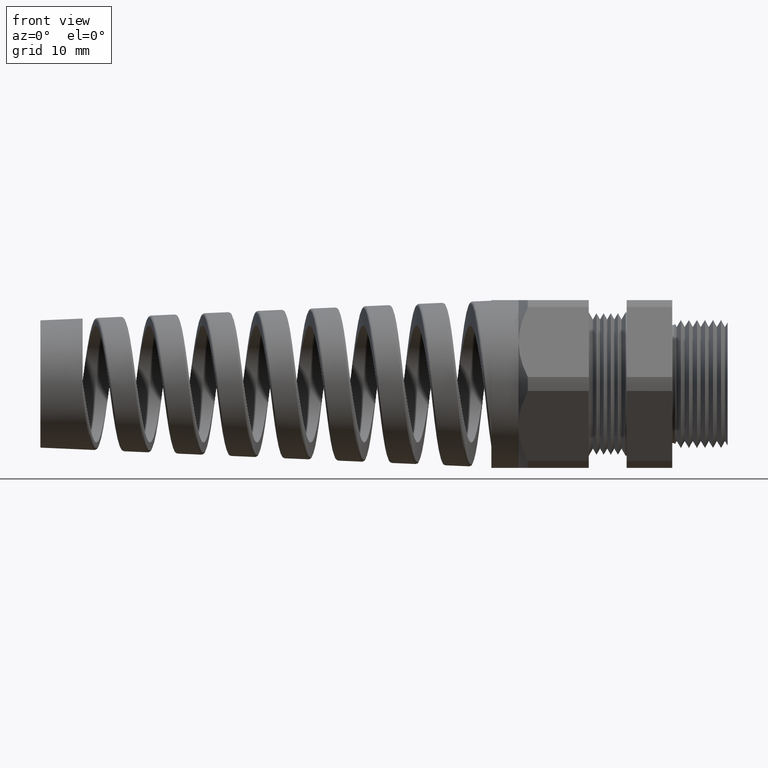
[diagram: clean part render]
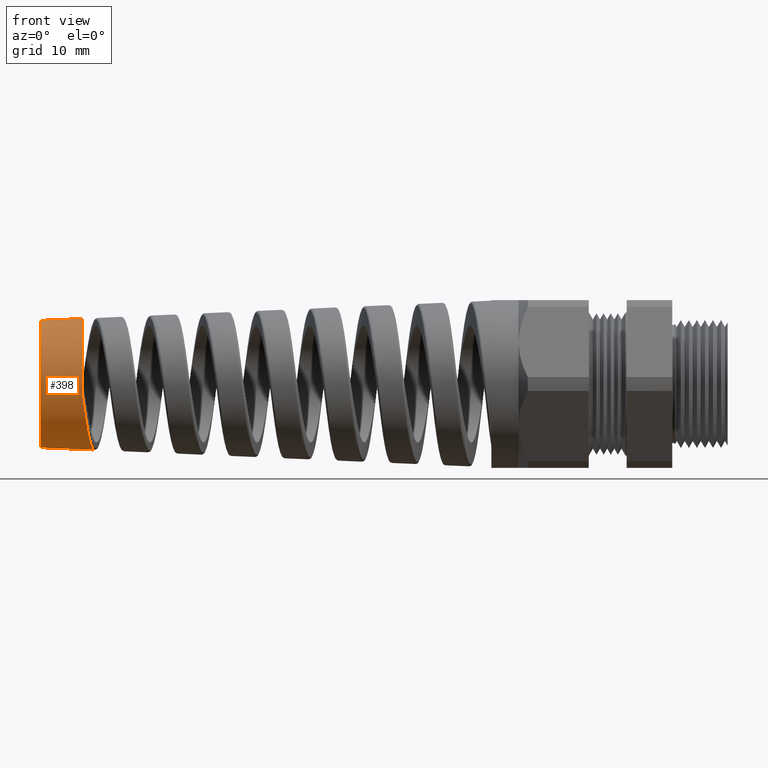
[diagram: same view with one face highlighted and labeled with its STEP entity id]
A machine part, front view. The second image highlights one B-rep face of the part: STEP entity #398.
In plain terms, the highlighted conical surface has half-angle 2.5 deg.
Its self-contained STEP definition (entity closure, byte-faithful):
#395 = VERTEX_POINT ( 'NONE', #1661 ) ;
#397 = EDGE_CURVE ( 'NONE', #473, #395, #1684, .T. ) ;
#398 = ADVANCED_FACE ( 'NONE', ( #1680 ), #1679, .T. ) ;
#399 = EDGE_LOOP ( 'NONE', ( #400, #401, #431, #432, #435 ) ) ;
#400 = ORIENTED_EDGE ( 'NONE', *, *, #475, .F. ) ;
#401 = ORIENTED_EDGE ( 'NONE', *, *, #402, .F. ) ;
#402 = EDGE_CURVE ( 'NONE', #473, #472, #1743, .T. ) ;
#431 = ORIENTED_EDGE ( 'NONE', *, *, #397, .T. ) ;
#432 = ORIENTED_EDGE ( 'NONE', *, *, #433, .T. ) ;
#433 = EDGE_CURVE ( 'NONE', #395, #434, #1813, .T. ) ;
#434 = VERTEX_POINT ( 'NONE', #1815 ) ;
#435 = ORIENTED_EDGE ( 'NONE', *, *, #436, .T. ) ;
#436 = EDGE_CURVE ( 'NONE', #434, #476, #1782, .T. ) ;
#472 = VERTEX_POINT ( 'NONE', #1972 ) ;
#473 = VERTEX_POINT ( 'NONE', #2040 ) ;
#475 = EDGE_CURVE ( 'NONE', #472, #476, #2039, .T. ) ;
#476 = VERTEX_POINT ( 'NONE', #2035 ) ;
#1661 = CARTESIAN_POINT ( 'NONE',  ( -3.547311726726791700, 4.682762619066216700E-013, -0.3696972038563253700 ) ) ;
#1674 = CARTESIAN_POINT ( 'NONE',  ( -3.850000472440945600, 0.0000000000000000000, 0.0000000000000000000 ) ) ;
#1675 = DIRECTION ( 'NONE',  ( 0.0000000000000000000, 0.0000000000000000000, -1.000000000000000000 ) ) ;
#1676 = DIRECTION ( 'NONE',  ( 1.000000000000000000, 0.0000000000000000000, 0.0000000000000000000 ) ) ;
#1677 = CARTESIAN_POINT ( 'NONE',  ( -1.250000000000000000, 0.0000000000000000000, 0.0000000000000000000 ) ) ;
#1678 = AXIS2_PLACEMENT_3D ( 'NONE', #1677, #1676, #1675 ) ;
#1679 = CONICAL_SURFACE ( 'NONE', #1678, 0.4699999999999998600, 0.04363323129985855600 ) ;
#1680 = FACE_OUTER_BOUND ( 'NONE', #399, .T. ) ;
#1681 = DIRECTION ( 'NONE',  ( 0.9990482215818576900, 0.0000000000000000000, -0.04361938736533631900 ) ) ;
#1682 = VECTOR ( 'NONE', #1681, 39.37007874015748100 ) ;
#1683 = CARTESIAN_POINT ( 'NONE',  ( -1.250000000000000000, 0.0000000000000000000, -0.4699999999999998600 ) ) ;
#1684 = LINE ( 'NONE', #1683, #1682 ) ;
#1740 = DIRECTION ( 'NONE',  ( 0.0000000000000000000, 0.0000000000000000000, 1.000000000000000000 ) ) ;
#1741 = DIRECTION ( 'NONE',  ( -1.000000000000000000, 0.0000000000000000000, 0.0000000000000000000 ) ) ;
#1742 = AXIS2_PLACEMENT_3D ( 'NONE', #1674, #1741, #1740 ) ;
#1743 = CIRCLE ( 'NONE', #1742, 0.3564815278106572800 ) ;
#1780 = DIRECTION ( 'NONE',  ( -1.000000000000000000, 0.0000000000000000000, 0.0000000000000000000 ) ) ;
#1781 = AXIS2_PLACEMENT_3D ( 'NONE', #1814, #1780, #1809 ) ;
#1782 = CIRCLE ( 'NONE', #1781, 0.3667951363717231700 ) ;
#1783 = CARTESIAN_POINT ( 'NONE',  ( -3.613780000000000200, -0.3609800727387581500, -0.06505427850239330100 ) ) ;
#1784 = CARTESIAN_POINT ( 'NONE',  ( -3.612377216964120800, -0.3591284444417066600, -0.07567411739134673200 ) ) ;
#1785 = CARTESIAN_POINT ( 'NONE',  ( -3.610978473443785300, -0.3568144953217378100, -0.08618398395442983300 ) ) ;
#1786 = CARTESIAN_POINT ( 'NONE',  ( -3.608178348853377400, -0.3512670131667060500, -0.1069835470925400200 ) ) ;
#1787 = CARTESIAN_POINT ( 'NONE',  ( -3.606775100498849100, -0.3480254015438168900, -0.1172857280111182400 ) ) ;
#1788 = CARTESIAN_POINT ( 'NONE',  ( -3.602601675547284700, -0.3370628142304207800, -0.1474570524811002500 ) ) ;
#1789 = CARTESIAN_POINT ( 'NONE',  ( -3.599849319971850600, -0.3280831225088548000, -0.1667325073307411600 ) ) ;
#1790 = CARTESIAN_POINT ( 'NONE',  ( -3.595703030018903200, -0.3121529980773223300, -0.1944017765682521100 ) ) ;
#1791 = CARTESIAN_POINT ( 'NONE',  ( -3.594318009923533000, -0.3064305973954998300, -0.2034164119074073100 ) ) ;
#1792 = CARTESIAN_POINT ( 'NONE',  ( -3.591531346717174800, -0.2941409397394300100, -0.2210170389564540500 ) ) ;
#1793 = CARTESIAN_POINT ( 'NONE',  ( -3.590130182305023800, -0.2875710544330656300, -0.2295961973772053500 ) ) ;
#1794 = CARTESIAN_POINT ( 'NONE',  ( -3.585968297373755200, -0.2669782582606783400, -0.2541864445958778600 ) ) ;
#1795 = CARTESIAN_POINT ( 'NONE',  ( -3.583221715274647500, -0.2519611843617772200, -0.2692363223295592400 ) ) ;
#1796 = CARTESIAN_POINT ( 'NONE',  ( -3.579081816020239800, -0.2275342193812148700, -0.2898169403811261500 ) ) ;
#1797 = CARTESIAN_POINT ( 'NONE',  ( -3.577698555081448200, -0.2190732718422288800, -0.2963429733869709100 ) ) ;
#1798 = CARTESIAN_POINT ( 'NONE',  ( -3.574914618853894500, -0.2014978947153698300, -0.3087076608156366600 ) ) ;
#1799 = CARTESIAN_POINT ( 'NONE',  ( -3.573518282957256700, -0.1924083085025249900, -0.3145226449081263700 ) ) ;
#1800 = CARTESIAN_POINT ( 'NONE',  ( -3.569367627383842800, -0.1646848794985025800, -0.3306060567074884900 ) ) ;
#1801 = CARTESIAN_POINT ( 'NONE',  ( -3.566626469986264400, -0.1454410237745028800, -0.3396379440789657500 ) ) ;
#1802 = CARTESIAN_POINT ( 'NONE',  ( -3.561114914651062800, -0.1054547484241203200, -0.3543499685123486800 ) ) ;
#1803 = CARTESIAN_POINT ( 'NONE',  ( -3.558318993760722900, -0.08450993154052381700, -0.3600485728898277200 ) ) ;
#1809 = DIRECTION ( 'NONE',  ( 0.0000000000000000000, 0.0000000000000000000, 1.000000000000000000 ) ) ;
#1810 = CARTESIAN_POINT ( 'NONE',  ( -3.552799245858483600, -0.04247919047278784400, -0.3676281277502226900 ) ) ;
#1811 = CARTESIAN_POINT ( 'NONE',  ( -3.550063386162569200, -0.02131228496199647300, -0.3695770638108231700 ) ) ;
#1812 = CARTESIAN_POINT ( 'NONE',  ( -3.547311726726791700, 4.682762619066216700E-013, -0.3696972038563253700 ) ) ;
#1813 = B_SPLINE_CURVE_WITH_KNOTS ( 'NONE', 3,
 ( #1812, #1811, #1810, #1803, #1802, #1801, #1800, #1799, #1798, #1797, #1796, #1795, #1794, #1793, #1792, #1791, #1790, #1789, #1788, #1787, #1786, #1785, #1784, #1783 ),
 .UNSPECIFIED., .F., .F.,
 ( 4, 2, 2, 2, 2, 2, 2, 2, 2, 2, 2, 4 ),
 ( 0.4996848153264979400, 0.5013375913734221500, 0.5029903674203463100, 0.5046431434672704600, 0.5054695314907325900, 0.5062959195141946100, 0.5079486955611187700, 0.5087750835845809000, 0.5096014716080429200, 0.5112542476549671900, 0.5120806356784292100, 0.5129070237018913400 ),
 .UNSPECIFIED. ) ;
#1814 = CARTESIAN_POINT ( 'NONE',  ( -3.613780000000000200, 0.0000000000000000000, 0.0000000000000000000 ) ) ;
#1815 = CARTESIAN_POINT ( 'NONE',  ( -3.613780000000000200, -0.3609800727387581500, -0.06505427850239330100 ) ) ;
#1972 = CARTESIAN_POINT ( 'NONE',  ( -3.850000472440945600, 4.527709870791863200E-017, 0.3564815278106572800 ) ) ;
#2035 = CARTESIAN_POINT ( 'NONE',  ( -3.613780000000000200, 4.491944897004394200E-017, 0.3667951363717164000 ) ) ;
#2036 = DIRECTION ( 'NONE',  ( 0.9990482215818576900, 5.341834311772762600E-018, 0.04361938736533631900 ) ) ;
#2037 = VECTOR ( 'NONE', #2036, 39.37007874015748100 ) ;
#2038 = CARTESIAN_POINT ( 'NONE',  ( -1.250000000000000000, 5.755839955992558400E-017, 0.4699999999999998600 ) ) ;
#2039 = LINE ( 'NONE', #2038, #2037 ) ;
#2040 = CARTESIAN_POINT ( 'NONE',  ( -3.850000472440945600, 0.0000000000000000000, -0.3564815278106572800 ) ) ;